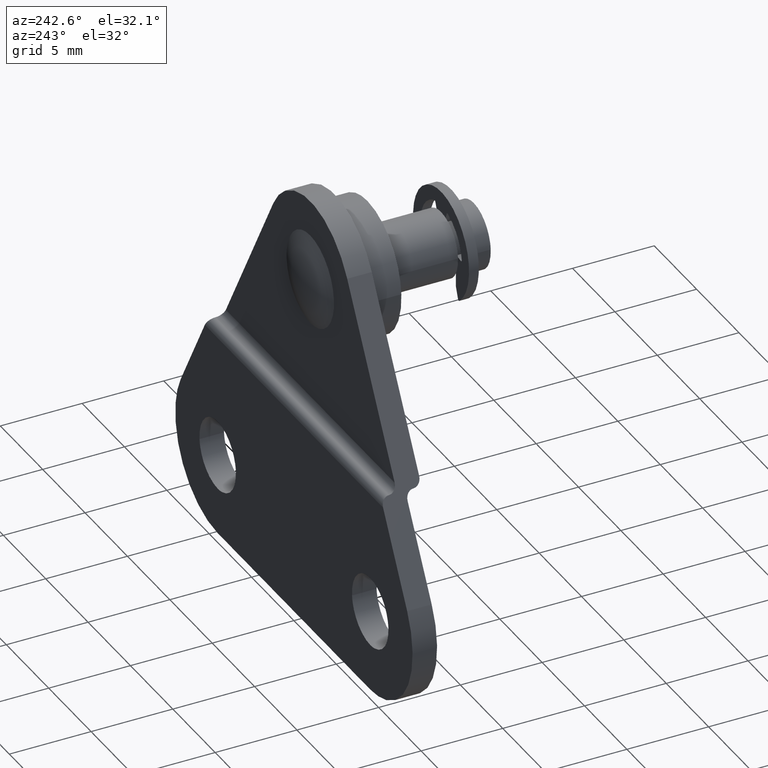
[diagram: clean part render]
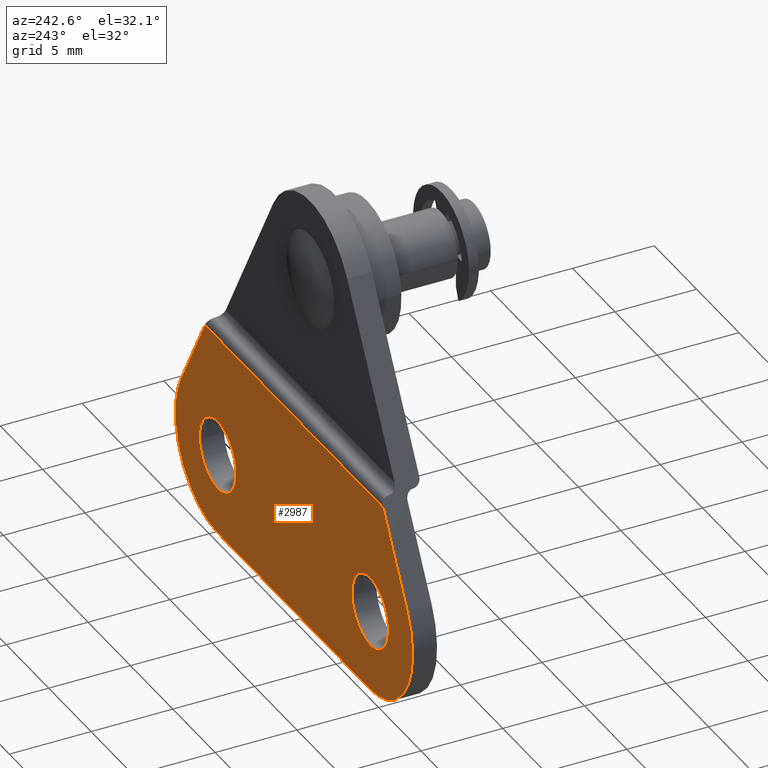
[diagram: same view with one face highlighted and labeled with its STEP entity id]
A machine part, auxiliary view. The second image highlights one B-rep face of the part: STEP entity #2987.
In plain terms, the highlighted face is a freeform B-spline surface patch.
Its self-contained STEP definition (entity closure, byte-faithful):
#1972=CARTESIAN_POINT('',(-8.999999999999901,0.0,2.150000100000000));
#1973=VERTEX_POINT('',#1972);
#1974=CARTESIAN_POINT('',(-11.143372367213781,4.510281E-017,0.168687063712577));
#1975=VERTEX_POINT('',#1974);
#1976=CARTESIAN_POINT('',(-8.999999999999901,0.0,2.150000100000000));
#1977=CARTESIAN_POINT('',(-10.987439649407735,0.0,2.150000100000000));
#1978=CARTESIAN_POINT('',(-11.143372367213786,4.510281E-017,0.168687063712577));
#1986=(BOUNDED_CURVE()B_SPLINE_CURVE(2,(#1976,#1977,#1978),.UNSPECIFIED.,.F.,.U.)B_SPLINE_CURVE_WITH_KNOTS((3,3),(0.0,0.236331300624481),.UNSPECIFIED.)CURVE()GEOMETRIC_REPRESENTATION_ITEM()RATIONAL_B_SPLINE_CURVE((1.0,0.723120658614904,0.969723356154524))REPRESENTATION_ITEM(''));
#1987=EDGE_CURVE('',#1973,#1975,#1986,.T.);
#1989=CARTESIAN_POINT('',(-6.856627632786019,4.510281E-017,-0.168687063712577));
#1990=VERTEX_POINT('',#1989);
#1991=CARTESIAN_POINT('',(-6.856627632786019,4.510281E-017,-0.168687063712577));
#1992=CARTESIAN_POINT('',(-6.849999899999900,0.0,-0.084473734047541));
#1993=CARTESIAN_POINT('',(-6.849999899999900,0.0,0.0));
#1994=CARTESIAN_POINT('',(-6.849999899999901,0.0,2.150000100000001));
#1995=CARTESIAN_POINT('',(-8.999999999999901,0.0,2.150000100000000));
#2003=(BOUNDED_CURVE()B_SPLINE_CURVE(2,(#1991,#1992,#1993,#1994,#1995),.UNSPECIFIED.,.F.,.U.)B_SPLINE_CURVE_WITH_KNOTS((3,2,3),(0.736331300624481,0.750000000000000,1.0),.UNSPECIFIED.)CURVE()GEOMETRIC_REPRESENTATION_ITEM()RATIONAL_B_SPLINE_CURVE((0.969723356154524,0.983986122571643,1.0,0.707106781186548,1.0))REPRESENTATION_ITEM(''));
#2004=EDGE_CURVE('',#1990,#1973,#2003,.T.);
#2071=CARTESIAN_POINT('',(-8.999999999999901,0.0,-2.150000100000000));
#2072=VERTEX_POINT('',#2071);
#2073=CARTESIAN_POINT('',(-11.143372367213786,4.510281E-017,0.168687063712577));
#2074=CARTESIAN_POINT('',(-11.150000099999902,0.0,0.084473734047541));
#2075=CARTESIAN_POINT('',(-11.150000099999900,0.0,0.0));
#2076=CARTESIAN_POINT('',(-11.150000099999900,0.0,-2.150000100000001));
#2077=CARTESIAN_POINT('',(-8.999999999999901,0.0,-2.150000100000000));
#2085=(BOUNDED_CURVE()B_SPLINE_CURVE(2,(#2073,#2074,#2075,#2076,#2077),.UNSPECIFIED.,.F.,.U.)B_SPLINE_CURVE_WITH_KNOTS((3,2,3),(0.236331300624481,0.250000000000000,0.500000000000000),.UNSPECIFIED.)CURVE()GEOMETRIC_REPRESENTATION_ITEM()RATIONAL_B_SPLINE_CURVE((0.969723356154524,0.983986122571643,1.0,0.707106781186548,1.0))REPRESENTATION_ITEM(''));
#2086=EDGE_CURVE('',#1975,#2072,#2085,.T.);
#2120=CARTESIAN_POINT('',(-8.999999999999901,0.0,-2.150000100000000));
#2121=CARTESIAN_POINT('',(-7.012560350592060,0.0,-2.150000100000001));
#2122=CARTESIAN_POINT('',(-6.856627632786019,4.510281E-017,-0.168687063712577));
#2130=(BOUNDED_CURVE()B_SPLINE_CURVE(2,(#2120,#2121,#2122),.UNSPECIFIED.,.F.,.U.)B_SPLINE_CURVE_WITH_KNOTS((3,3),(0.500000000000000,0.736331300624482),.UNSPECIFIED.)CURVE()GEOMETRIC_REPRESENTATION_ITEM()RATIONAL_B_SPLINE_CURVE((1.0,0.723120658614904,0.969723356154525))REPRESENTATION_ITEM(''));
#2131=EDGE_CURVE('',#2072,#1990,#2130,.T.);
#2154=CARTESIAN_POINT('',(8.999995999999999,0.0,2.150000100000000));
#2155=VERTEX_POINT('',#2154);
#2156=CARTESIAN_POINT('',(6.856623632786118,4.510281E-017,0.168687063712577));
#2157=VERTEX_POINT('',#2156);
#2158=CARTESIAN_POINT('',(8.999995999999999,0.0,2.150000100000000));
#2159=CARTESIAN_POINT('',(7.012556350592164,0.0,2.150000100000000));
#2160=CARTESIAN_POINT('',(6.856623632786118,4.510281E-017,0.168687063712577));
#2168=(BOUNDED_CURVE()B_SPLINE_CURVE(2,(#2158,#2159,#2160),.UNSPECIFIED.,.F.,.U.)B_SPLINE_CURVE_WITH_KNOTS((3,3),(0.0,0.236331300624481),.UNSPECIFIED.)CURVE()GEOMETRIC_REPRESENTATION_ITEM()RATIONAL_B_SPLINE_CURVE((1.0,0.723120658614904,0.969723356154524))REPRESENTATION_ITEM(''));
#2169=EDGE_CURVE('',#2155,#2157,#2168,.T.);
#2171=CARTESIAN_POINT('',(11.143368367213879,4.510281E-017,-0.168687063712577));
#2172=VERTEX_POINT('',#2171);
#2173=CARTESIAN_POINT('',(11.143368367213883,4.510281E-017,-0.168687063712577));
#2174=CARTESIAN_POINT('',(11.149996100000005,0.0,-0.084473734047541));
#2175=CARTESIAN_POINT('',(11.149996099999999,0.0,0.0));
#2176=CARTESIAN_POINT('',(11.149996100000001,0.0,2.150000100000001));
#2177=CARTESIAN_POINT('',(8.999995999999999,0.0,2.150000100000000));
#2185=(BOUNDED_CURVE()B_SPLINE_CURVE(2,(#2173,#2174,#2175,#2176,#2177),.UNSPECIFIED.,.F.,.U.)B_SPLINE_CURVE_WITH_KNOTS((3,2,3),(0.736331300624481,0.750000000000000,1.0),.UNSPECIFIED.)CURVE()GEOMETRIC_REPRESENTATION_ITEM()RATIONAL_B_SPLINE_CURVE((0.969723356154524,0.983986122571643,1.0,0.707106781186548,1.0))REPRESENTATION_ITEM(''));
#2186=EDGE_CURVE('',#2172,#2155,#2185,.T.);
#2253=CARTESIAN_POINT('',(8.999995999999999,0.0,-2.150000100000000));
#2254=VERTEX_POINT('',#2253);
#2255=CARTESIAN_POINT('',(6.856623632786118,4.510281E-017,0.168687063712577));
#2256=CARTESIAN_POINT('',(6.849995899999999,0.0,0.084473734047541));
#2257=CARTESIAN_POINT('',(6.849995899999999,0.0,0.0));
#2258=CARTESIAN_POINT('',(6.849995899999998,0.0,-2.150000100000001));
#2259=CARTESIAN_POINT('',(8.999995999999999,0.0,-2.150000100000000));
#2267=(BOUNDED_CURVE()B_SPLINE_CURVE(2,(#2255,#2256,#2257,#2258,#2259),.UNSPECIFIED.,.F.,.U.)B_SPLINE_CURVE_WITH_KNOTS((3,2,3),(0.236331300624481,0.250000000000000,0.500000000000000),.UNSPECIFIED.)CURVE()GEOMETRIC_REPRESENTATION_ITEM()RATIONAL_B_SPLINE_CURVE((0.969723356154524,0.983986122571643,1.0,0.707106781186548,1.0))REPRESENTATION_ITEM(''));
#2268=EDGE_CURVE('',#2157,#2254,#2267,.T.);
#2302=CARTESIAN_POINT('',(8.999995999999999,0.0,-2.150000100000000));
#2303=CARTESIAN_POINT('',(10.987435649407841,0.0,-2.150000100000001));
#2304=CARTESIAN_POINT('',(11.143368367213881,4.510281E-017,-0.168687063712577));
#2312=(BOUNDED_CURVE()B_SPLINE_CURVE(2,(#2302,#2303,#2304),.UNSPECIFIED.,.F.,.U.)B_SPLINE_CURVE_WITH_KNOTS((3,3),(0.500000000000000,0.736331300624482),.UNSPECIFIED.)CURVE()GEOMETRIC_REPRESENTATION_ITEM()RATIONAL_B_SPLINE_CURVE((1.0,0.723120658614904,0.969723356154525))REPRESENTATION_ITEM(''));
#2313=EDGE_CURVE('',#2254,#2172,#2312,.T.);
#2490=CARTESIAN_POINT('',(-10.517990231155320,0.0,7.500000000000000));
#2491=VERTEX_POINT('',#2490);
#2505=CARTESIAN_POINT('',(-13.357879499999861,0.0,2.451310000000000));
#2506=VERTEX_POINT('',#2505);
#2507=CARTESIAN_POINT('',(-10.517990231155320,0.0,7.500000000000000));
#2508=CARTESIAN_POINT('',(-13.357879499999861,0.0,2.451310000000000));
#2509=QUASI_UNIFORM_CURVE('',1,(#2507,#2508),.UNSPECIFIED.,.F.,.U.);
#2510=EDGE_CURVE('',#2491,#2506,#2509,.T.);
#2588=CARTESIAN_POINT('',(13.357877500000100,0.0,2.451300000000000));
#2589=VERTEX_POINT('',#2588);
#2595=CARTESIAN_POINT('',(10.517983750000040,0.0,7.500000000000000));
#2596=VERTEX_POINT('',#2595);
#2597=CARTESIAN_POINT('',(13.357877500000100,0.0,2.451300000000000));
#2598=CARTESIAN_POINT('',(10.517983750000040,0.0,7.500000000000000));
#2599=QUASI_UNIFORM_CURVE('',1,(#2597,#2598),.UNSPECIFIED.,.F.,.U.);
#2600=EDGE_CURVE('',#2589,#2596,#2599,.T.);
#2685=CARTESIAN_POINT('',(8.999995999999999,0.0,-5.0));
#2686=VERTEX_POINT('',#2685);
#2694=CARTESIAN_POINT('',(8.999995999999999,0.0,-5.0));
#2695=CARTESIAN_POINT('',(11.868092866359284,0.0,-5.0));
#2696=CARTESIAN_POINT('',(13.316041603292900,0.0,-2.524232626026381));
#2697=CARTESIAN_POINT('',(14.763990340226524,0.0,-0.048465252052760));
#2698=CARTESIAN_POINT('',(13.357877500000100,0.0,2.451300000000000));
#2706=(BOUNDED_CURVE()B_SPLINE_CURVE(2,(#2694,#2695,#2696,#2697,#2698),.UNSPECIFIED.,.F.,.U.)B_SPLINE_CURVE_WITH_KNOTS((3,2,3),(0.0,0.500000000000000,1.0),.UNSPECIFIED.)CURVE()GEOMETRIC_REPRESENTATION_ITEM()RATIONAL_B_SPLINE_CURVE((1.0,0.867423346816673,1.0,0.867423346816673,1.0))REPRESENTATION_ITEM(''));
#2707=EDGE_CURVE('',#2686,#2589,#2706,.T.);
#2743=CARTESIAN_POINT('',(-8.999999999999901,0.0,-5.0));
#2744=VERTEX_POINT('',#2743);
#2745=CARTESIAN_POINT('',(-13.357879499999861,0.0,2.451310000000000));
#2746=CARTESIAN_POINT('',(-14.763998512783774,0.0,-0.048455476383551));
#2747=CARTESIAN_POINT('',(-13.316049552258461,0.0,-2.524227596528680));
#2748=CARTESIAN_POINT('',(-11.868100591733141,0.0,-4.999999716673809));
#2749=CARTESIAN_POINT('',(-8.999999999999901,0.0,-5.0));
#2757=(BOUNDED_CURVE()B_SPLINE_CURVE(2,(#2745,#2746,#2747,#2748,#2749),.UNSPECIFIED.,.F.,.U.)B_SPLINE_CURVE_WITH_KNOTS((3,2,3),(0.0,0.500000000000000,1.0),.UNSPECIFIED.)CURVE()GEOMETRIC_REPRESENTATION_ITEM()RATIONAL_B_SPLINE_CURVE((1.0,0.867423105587367,1.0,0.867423105587367,1.0))REPRESENTATION_ITEM(''));
#2758=EDGE_CURVE('',#2506,#2744,#2757,.T.);
#2879=CARTESIAN_POINT('',(-10.517990231155320,0.0,7.500000000000000));
#2880=CARTESIAN_POINT('',(10.517983750000040,0.0,7.500000000000000));
#2881=QUASI_UNIFORM_CURVE('',1,(#2879,#2880),.UNSPECIFIED.,.F.,.U.);
#2882=EDGE_CURVE('',#2491,#2596,#2881,.T.);
#2893=CARTESIAN_POINT('',(-8.999999999999901,0.0,-5.0));
#2894=CARTESIAN_POINT('',(8.999995999999999,0.0,-5.0));
#2895=QUASI_UNIFORM_CURVE('',1,(#2893,#2894),.UNSPECIFIED.,.F.,.U.);
#2896=EDGE_CURVE('',#2744,#2686,#2895,.T.);
#2962=CARTESIAN_POINT('',(-15.396699081191040,0.0,-5.624374975772574));
#2963=CARTESIAN_POINT('',(-15.396699081191040,0.0,8.124375311048702));
#2964=CARTESIAN_POINT('',(15.396692977033430,0.0,-5.624374975772574));
#2965=CARTESIAN_POINT('',(15.396692977033430,0.0,8.124375311048702));
#2966=B_SPLINE_SURFACE_WITH_KNOTS('',1,1,((#2962,#2964),(#2963,#2965)),.UNSPECIFIED.,.F.,.F.,.U.,(2,2),(2,2),(0.0,13.748750286821281),(0.0,30.793392058224470),.UNSPECIFIED.);
#2967=ORIENTED_EDGE('',*,*,#2600,.F.);
#2968=ORIENTED_EDGE('',*,*,#2707,.F.);
#2969=ORIENTED_EDGE('',*,*,#2896,.F.);
#2970=ORIENTED_EDGE('',*,*,#2758,.F.);
#2971=ORIENTED_EDGE('',*,*,#2510,.F.);
#2972=ORIENTED_EDGE('',*,*,#2882,.T.);
#2973=EDGE_LOOP('',(#2967,#2968,#2969,#2970,#2971,#2972));
#2974=FACE_OUTER_BOUND('',#2973,.T.);
#2975=ORIENTED_EDGE('',*,*,#2313,.T.);
#2976=ORIENTED_EDGE('',*,*,#2186,.T.);
#2977=ORIENTED_EDGE('',*,*,#2169,.T.);
#2978=ORIENTED_EDGE('',*,*,#2268,.T.);
#2979=EDGE_LOOP('',(#2975,#2976,#2977,#2978));
#2980=FACE_BOUND('',#2979,.T.);
#2981=ORIENTED_EDGE('',*,*,#2131,.T.);
#2982=ORIENTED_EDGE('',*,*,#2004,.T.);
#2983=ORIENTED_EDGE('',*,*,#1987,.T.);
#2984=ORIENTED_EDGE('',*,*,#2086,.T.);
#2985=EDGE_LOOP('',(#2981,#2982,#2983,#2984));
#2986=FACE_BOUND('',#2985,.T.);
#2987=ADVANCED_FACE('',(#2974,#2980,#2986),#2966,.T.);